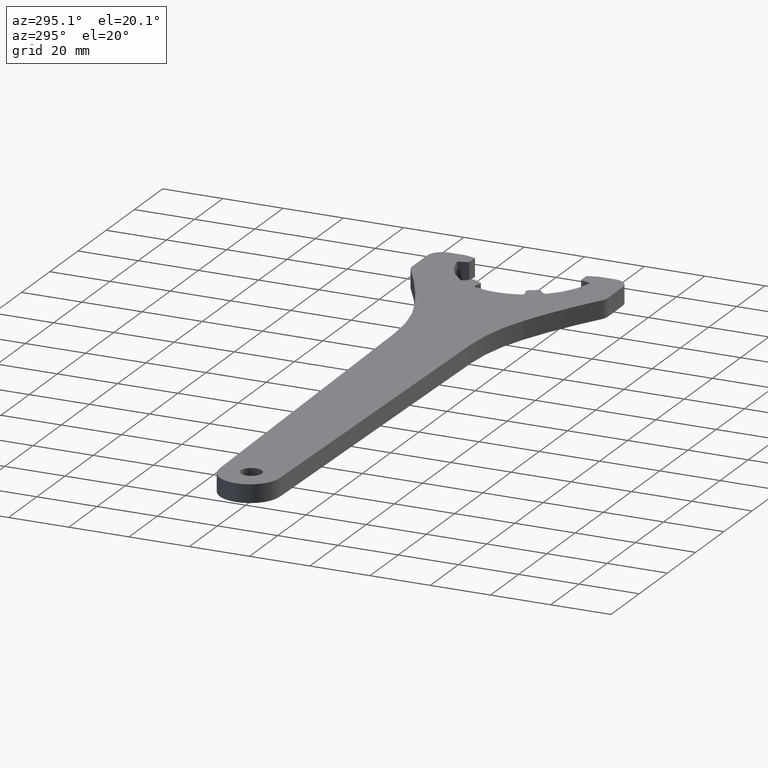
[diagram: clean part render]
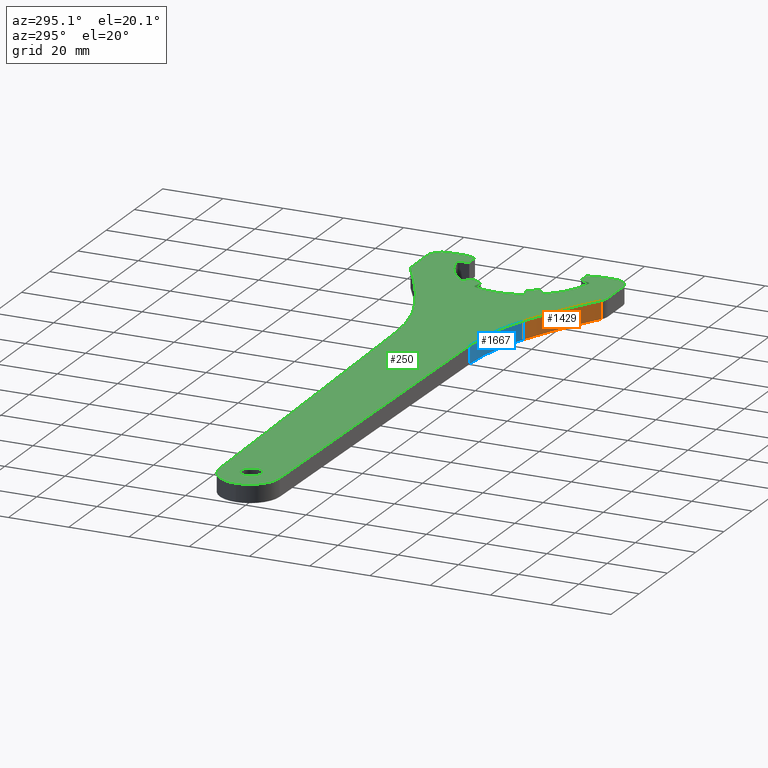
[diagram: same view with three faces highlighted in distinct colors, each labeled with its STEP entity id]
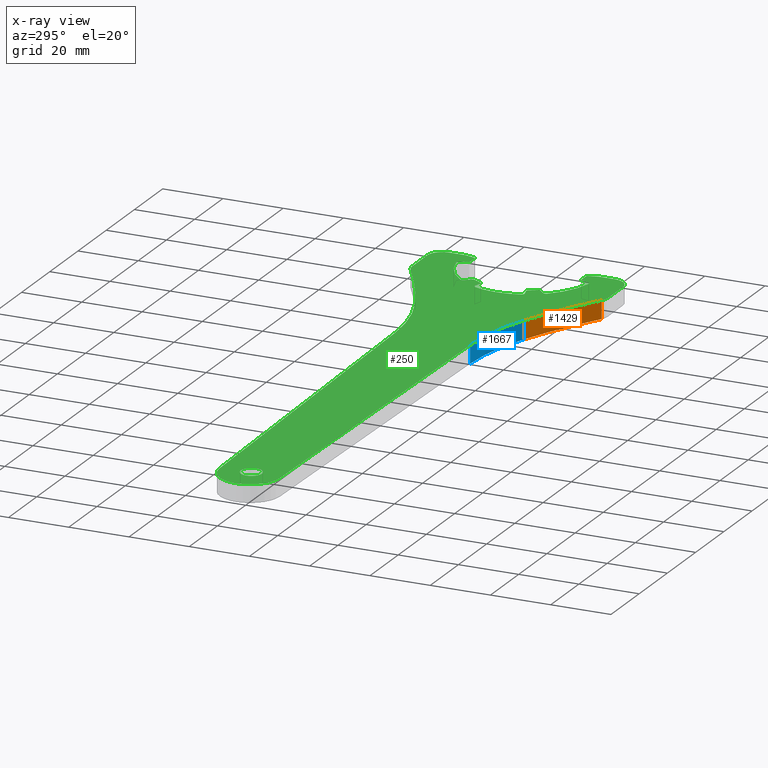
[diagram: x-ray of the same camera — body ghosted, the three highlighted faces saturated]
A machine part, auxiliary view with three faces highlighted in distinct colors.
The next image is the same camera in x-ray (body ghosted, the three faces saturated) — at least one of them is partly hidden behind the body in this view.
Their STEP definitions:

[orange] entity #1429 — the highlighted cylindrical surface (partial cylindrical patch) has radius 181.238 mm, axis along (0, 0, -1).
#48 = CARTESIAN_POINT ( 'NONE',  ( -15.41850356263618400, -31.72609176872342800, 0.0000000000000000000 ) ) ;
#92 = DIRECTION ( 'NONE',  ( 0.0000000000000000000, 0.0000000000000000000, -1.000000000000000000 ) ) ;
#197 = CARTESIAN_POINT ( 'NONE',  ( -41.59610270092473200, -18.02386688492609700, 6.000000000000000000 ) ) ;
#232 = ORIENTED_EDGE ( 'NONE', *, *, #861, .T. ) ;
#242 = DIRECTION ( 'NONE',  ( 0.0000000000000000000, 0.0000000000000000000, -1.000000000000000000 ) ) ;
#318 = ORIENTED_EDGE ( 'NONE', *, *, #988, .T. ) ;
#359 = ORIENTED_EDGE ( 'NONE', *, *, #1051, .T. ) ;
#551 = CARTESIAN_POINT ( 'NONE',  ( -41.59610267402430100, -18.02386689675500300, 3.000000000000000000 ) ) ;
#557 = CARTESIAN_POINT ( 'NONE',  ( -112.2756825459999800, -184.9114022759999900, 0.0000000000000000000 ) ) ;
#692 = DIRECTION ( 'NONE',  ( -1.000000000000000000, 0.0000000000000000000, 0.0000000000000000000 ) ) ;
#775 = CARTESIAN_POINT ( 'NONE',  ( -15.41850356262761900, -31.72609176870988500, 6.000000000000000000 ) ) ;
#788 = VERTEX_POINT ( 'NONE', #954 ) ;
#820 = CYLINDRICAL_SURFACE ( 'NONE', #1204, 181.2375581270000600 ) ;
#861 = EDGE_CURVE ( 'NONE', #1024, #788, #1246, .T. ) ;
#863 = DIRECTION ( 'NONE',  ( -0.0000000000000000000, -0.0000000000000000000, 1.000000000000000000 ) ) ;
#872 = AXIS2_PLACEMENT_3D ( 'NONE', #1049, #242, #1180 ) ;
#930 = VECTOR ( 'NONE', #1496, 1000.000000000000000 ) ;
#947 = VERTEX_POINT ( 'NONE', #775 ) ;
#952 = EDGE_CURVE ( 'NONE', #1024, #947, #1083, .T. ) ;
#954 = CARTESIAN_POINT ( 'NONE',  ( -41.59610270108135700, -18.02386688529592000, 0.0000000000000000000 ) ) ;
#958 = VERTEX_POINT ( 'NONE', #48 ) ;
#988 = EDGE_CURVE ( 'NONE', #958, #947, #1034, .T. ) ;
#994 = CARTESIAN_POINT ( 'NONE',  ( -15.41850356223255500, -31.72609176897863400, 3.000000000000000000 ) ) ;
#1024 = VERTEX_POINT ( 'NONE', #197 ) ;
#1034 = LINE ( 'NONE', #994, #1708 ) ;
#1049 = CARTESIAN_POINT ( 'NONE',  ( -112.2756825459999800, -184.9114022759999900, 6.000000000000000000 ) ) ;
#1051 = EDGE_CURVE ( 'NONE', #788, #958, #1631, .T. ) ;
#1083 = CIRCLE ( 'NONE', #872, 181.2375581270000600 ) ;
#1128 = ORIENTED_EDGE ( 'NONE', *, *, #952, .F. ) ;
#1180 = DIRECTION ( 'NONE',  ( -1.000000000000000000, 0.0000000000000000000, 0.0000000000000000000 ) ) ;
#1204 = AXIS2_PLACEMENT_3D ( 'NONE', #1707, #92, #1284 ) ;
#1246 = LINE ( 'NONE', #551, #930 ) ;
#1284 = DIRECTION ( 'NONE',  ( -1.000000000000000000, 0.0000000000000000000, 0.0000000000000000000 ) ) ;
#1313 = AXIS2_PLACEMENT_3D ( 'NONE', #557, #1500, #692 ) ;
#1429 = ADVANCED_FACE ( 'NONE', ( #1574 ), #820, .F. ) ;
#1496 = DIRECTION ( 'NONE',  ( 0.0000000000000000000, 0.0000000000000000000, -1.000000000000000000 ) ) ;
#1500 = DIRECTION ( 'NONE',  ( 0.0000000000000000000, 0.0000000000000000000, -1.000000000000000000 ) ) ;
#1574 = FACE_OUTER_BOUND ( 'NONE', #1675, .T. ) ;
#1631 = CIRCLE ( 'NONE', #1313, 181.2375581270000600 ) ;
#1675 = EDGE_LOOP ( 'NONE', ( #1128, #232, #359, #318 ) ) ;
#1707 = CARTESIAN_POINT ( 'NONE',  ( -112.2756825459999800, -184.9114022759999900, 6.000000000000000000 ) ) ;
#1708 = VECTOR ( 'NONE', #863, 1000.000000000000000 ) ;

[blue] entity #1667 — the highlighted cylindrical surface (partial cylindrical patch) has radius 70.1107 mm, axis along (0, 0, -1).
#6 = ORIENTED_EDGE ( 'NONE', *, *, #861, .F. ) ;
#59 = AXIS2_PLACEMENT_3D ( 'NONE', #1194, #394, #1323 ) ;
#99 = CARTESIAN_POINT ( 'NONE',  ( -67.59248863366760000, -12.48555840003721900, 6.000000000000000000 ) ) ;
#130 = EDGE_CURVE ( 'NONE', #960, #553, #1605, .T. ) ;
#139 = CARTESIAN_POINT ( 'NONE',  ( -67.59248863315484400, -12.48555838861780600, 0.0000000000000000000 ) ) ;
#156 = CARTESIAN_POINT ( 'NONE',  ( -68.93808457000000100, -82.58333333299998500, 0.0000000000000000000 ) ) ;
#167 = DIRECTION ( 'NONE',  ( 0.0000000000000000000, 0.0000000000000000000, -1.000000000000000000 ) ) ;
#197 = CARTESIAN_POINT ( 'NONE',  ( -41.59610270092473200, -18.02386688492609700, 6.000000000000000000 ) ) ;
#283 = DIRECTION ( 'NONE',  ( -1.000000000000000000, 0.0000000000000000000, 0.0000000000000000000 ) ) ;
#376 = EDGE_LOOP ( 'NONE', ( #1005, #1247, #702, #6 ) ) ;
#394 = DIRECTION ( 'NONE',  ( 0.0000000000000000000, 0.0000000000000000000, -1.000000000000000000 ) ) ;
#551 = CARTESIAN_POINT ( 'NONE',  ( -41.59610267402430100, -18.02386689675500300, 3.000000000000000000 ) ) ;
#553 = VERTEX_POINT ( 'NONE', #139 ) ;
#639 = DIRECTION ( 'NONE',  ( 0.0000000000000000000, 0.0000000000000000000, -1.000000000000000000 ) ) ;
#702 = ORIENTED_EDGE ( 'NONE', *, *, #1043, .T. ) ;
#733 = CYLINDRICAL_SURFACE ( 'NONE', #1632, 70.11068877599998900 ) ;
#788 = VERTEX_POINT ( 'NONE', #954 ) ;
#839 = CARTESIAN_POINT ( 'NONE',  ( -67.59248862842976300, -12.48555838823328700, 3.000000000000000000 ) ) ;
#861 = EDGE_CURVE ( 'NONE', #1024, #788, #1246, .T. ) ;
#881 = VECTOR ( 'NONE', #167, 1000.000000000000000 ) ;
#930 = VECTOR ( 'NONE', #1496, 1000.000000000000000 ) ;
#954 = CARTESIAN_POINT ( 'NONE',  ( -41.59610270108135700, -18.02386688529592000, 0.0000000000000000000 ) ) ;
#960 = VERTEX_POINT ( 'NONE', #99 ) ;
#1005 = ORIENTED_EDGE ( 'NONE', *, *, #1687, .F. ) ;
#1024 = VERTEX_POINT ( 'NONE', #197 ) ;
#1043 = EDGE_CURVE ( 'NONE', #553, #788, #1673, .T. ) ;
#1097 = DIRECTION ( 'NONE',  ( 0.0000000000000000000, 0.0000000000000000000, -1.000000000000000000 ) ) ;
#1194 = CARTESIAN_POINT ( 'NONE',  ( -68.93808457000000100, -82.58333333299998500, 6.000000000000000000 ) ) ;
#1246 = LINE ( 'NONE', #551, #930 ) ;
#1247 = ORIENTED_EDGE ( 'NONE', *, *, #130, .T. ) ;
#1323 = DIRECTION ( 'NONE',  ( -1.000000000000000000, 0.0000000000000000000, 0.0000000000000000000 ) ) ;
#1449 = CARTESIAN_POINT ( 'NONE',  ( -68.93808457000000100, -82.58333333299998500, 6.000000000000000000 ) ) ;
#1458 = CIRCLE ( 'NONE', #59, 70.11068877599998900 ) ;
#1496 = DIRECTION ( 'NONE',  ( 0.0000000000000000000, 0.0000000000000000000, -1.000000000000000000 ) ) ;
#1506 = FACE_OUTER_BOUND ( 'NONE', #376, .T. ) ;
#1508 = AXIS2_PLACEMENT_3D ( 'NONE', #156, #1097, #283 ) ;
#1587 = DIRECTION ( 'NONE',  ( -1.000000000000000000, 0.0000000000000000000, 0.0000000000000000000 ) ) ;
#1605 = LINE ( 'NONE', #839, #881 ) ;
#1632 = AXIS2_PLACEMENT_3D ( 'NONE', #1449, #639, #1587 ) ;
#1667 = ADVANCED_FACE ( 'NONE', ( #1506 ), #733, .F. ) ;
#1673 = CIRCLE ( 'NONE', #1508, 70.11068877599998900 ) ;
#1687 = EDGE_CURVE ( 'NONE', #960, #1024, #1458, .T. ) ;

[green] entity #250 — the highlighted planar face has unit normal (0, 0, 1).
#2 = DIRECTION ( 'NONE',  ( -1.000000000000000000, -6.938893903907222100E-015, 0.0000000000000000000 ) ) ;
#8 = CARTESIAN_POINT ( 'NONE',  ( -12.74639795799999900, 27.50000000000000000, 6.000000000000000000 ) ) ;
#17 = CARTESIAN_POINT ( 'NONE',  ( -16.30409609500000200, 13.74719176499999700, 6.000000000000000000 ) ) ;
#18 = DIRECTION ( 'NONE',  ( 1.000000000000000000, 0.0000000000000000000, 0.0000000000000000000 ) ) ;
#19 = EDGE_CURVE ( 'NONE', #1386, #286, #650, .T. ) ;
#28 = DIRECTION ( 'NONE',  ( -0.0000000000000000000, -0.0000000000000000000, 1.000000000000000000 ) ) ;
#35 = ORIENTED_EDGE ( 'NONE', *, *, #380, .T. ) ;
#40 = CARTESIAN_POINT ( 'NONE',  ( -15.62131441899999900, -10.94308974500000000, 6.000000000000000000 ) ) ;
#42 = ORIENTED_EDGE ( 'NONE', *, *, #1629, .T. ) ;
#43 = CIRCLE ( 'NONE', #396, 1.000000000000000400 ) ;
#44 = DIRECTION ( 'NONE',  ( -1.000000000000000000, 0.0000000000000000000, 0.0000000000000000000 ) ) ;
#51 = ORIENTED_EDGE ( 'NONE', *, *, #892, .T. ) ;
#52 = LINE ( 'NONE', #644, #760 ) ;
#55 = LINE ( 'NONE', #1651, #1393 ) ;
#58 = EDGE_CURVE ( 'NONE', #666, #697, #1013, .T. ) ;
#59 = AXIS2_PLACEMENT_3D ( 'NONE', #1194, #394, #1323 ) ;
#60 = AXIS2_PLACEMENT_3D ( 'NONE', #417, #1340, #548 ) ;
#65 = CIRCLE ( 'NONE', #1347, 10.00000000000000900 ) ;
#71 = VERTEX_POINT ( 'NONE', #1717 ) ;
#85 = ORIENTED_EDGE ( 'NONE', *, *, #1684, .T. ) ;
#91 = CIRCLE ( 'NONE', #821, 22.32624746300000500 ) ;
#96 = DIRECTION ( 'NONE',  ( 0.2588191014997078800, -0.9659258111774857700, 0.0000000000000000000 ) ) ;
#97 = ORIENTED_EDGE ( 'NONE', *, *, #1062, .F. ) ;
#98 = DIRECTION ( 'NONE',  ( -0.0000000000000000000, -0.0000000000000000000, 1.000000000000000000 ) ) ;
#99 = CARTESIAN_POINT ( 'NONE',  ( -67.59248863366760000, -12.48555840003721900, 6.000000000000000000 ) ) ;
#104 = ORIENTED_EDGE ( 'NONE', *, *, #636, .T. ) ;
#105 = CIRCLE ( 'NONE', #1172, 1.000000000000000900 ) ;
#106 = VECTOR ( 'NONE', #96, 1000.000000000000000 ) ;
#109 = EDGE_CURVE ( 'NONE', #315, #116, #1653, .T. ) ;
#115 = CARTESIAN_POINT ( 'NONE',  ( -17.01120287352164000, 13.04008500470509100, 6.000000000000000000 ) ) ;
#116 = VERTEX_POINT ( 'NONE', #695 ) ;
#118 = VERTEX_POINT ( 'NONE', #1650 ) ;
#119 = DIRECTION ( 'NONE',  ( -1.000000000000000000, -1.776356839400250500E-015, 0.0000000000000000000 ) ) ;
#124 = DIRECTION ( 'NONE',  ( -0.0000000000000000000, -0.0000000000000000000, 1.000000000000000000 ) ) ;
#129 = DIRECTION ( 'NONE',  ( -1.000000000000000000, -8.881784197001252300E-016, 0.0000000000000000000 ) ) ;
#147 = DIRECTION ( 'NONE',  ( -1.000000000000000000, 3.469446951953615000E-015, 0.0000000000000000000 ) ) ;
#150 = CARTESIAN_POINT ( 'NONE',  ( 2.050000031239979300, 18.50000002499999900, 6.000000000000000000 ) ) ;
#153 = AXIS2_PLACEMENT_3D ( 'NONE', #658, #1608, #797 ) ;
#159 = VERTEX_POINT ( 'NONE', #1028 ) ;
#163 = DIRECTION ( 'NONE',  ( -1.000000000000000000, 0.0000000000000000000, 0.0000000000000000000 ) ) ;
#165 = CARTESIAN_POINT ( 'NONE',  ( 1.666336506000000200, -18.50000001249999600, 6.000000000000000000 ) ) ;
#168 = VERTEX_POINT ( 'NONE', #217 ) ;
#169 = CARTESIAN_POINT ( 'NONE',  ( -102.6097512369999700, -32.50000000000000000, 6.000000000000000000 ) ) ;
#173 = CARTESIAN_POINT ( 'NONE',  ( 0.0000000000000000000, 0.0000000000000000000, 6.000000000000000000 ) ) ;
#179 = DIRECTION ( 'NONE',  ( -1.000000000000000000, 0.0000000000000000000, 0.0000000000000000000 ) ) ;
#181 = CIRCLE ( 'NONE', #478, 22.32624746300000500 ) ;
#182 = EDGE_CURVE ( 'NONE', #286, #834, #1198, .T. ) ;
#187 = AXIS2_PLACEMENT_3D ( 'NONE', #1740, #937, #129 ) ;
#197 = CARTESIAN_POINT ( 'NONE',  ( -41.59610270092473200, -18.02386688492609700, 6.000000000000000000 ) ) ;
#208 = ORIENTED_EDGE ( 'NONE', *, *, #1155, .T. ) ;
#216 = CIRCLE ( 'NONE', #384, 0.5000000000000073300 ) ;
#217 = CARTESIAN_POINT ( 'NONE',  ( -17.41706045098349900, 7.573947336902477900, 6.000000000000000000 ) ) ;
#227 = CARTESIAN_POINT ( 'NONE',  ( -16.85463823866665200, 7.806910264197613400, 6.000000000000000000 ) ) ;
#238 = VECTOR ( 'NONE', #341, 1000.000000000000200 ) ;
#242 = DIRECTION ( 'NONE',  ( 0.0000000000000000000, 0.0000000000000000000, -1.000000000000000000 ) ) ;
#243 = CARTESIAN_POINT ( 'NONE',  ( -19.79864627649996600, 8.212091355000005400, 6.000000000000000000 ) ) ;
#245 = CARTESIAN_POINT ( 'NONE',  ( -16.30409609500000200, 13.74719176499999700, 6.000000000000000000 ) ) ;
#250 = ADVANCED_FACE ( 'NONE', ( #753, #803 ), #1071, .T. ) ;
#255 = EDGE_CURVE ( 'NONE', #315, #1291, #43, .T. ) ;
#263 = CARTESIAN_POINT ( 'NONE',  ( -199.4797512373251600, 4.286263797015716400E-016, 6.000000000000000000 ) ) ;
#269 = VERTEX_POINT ( 'NONE', #361 ) ;
#273 = DIRECTION ( 'NONE',  ( -0.0000000000000000000, -0.0000000000000000000, 1.000000000000000000 ) ) ;
#281 = DIRECTION ( 'NONE',  ( 0.2588190386275460200, 0.9659258280240324800, 0.0000000000000000000 ) ) ;
#282 = VERTEX_POINT ( 'NONE', #227 ) ;
#284 = CIRCLE ( 'NONE', #1658, 181.2375581270000600 ) ;
#285 = DIRECTION ( 'NONE',  ( 0.0000000000000000000, 0.0000000000000000000, 1.000000000000000000 ) ) ;
#286 = VERTEX_POINT ( 'NONE', #1167 ) ;
#296 = VECTOR ( 'NONE', #488, 1000.000000000000000 ) ;
#298 = LINE ( 'NONE', #808, #980 ) ;
#304 = DIRECTION ( 'NONE',  ( -1.000000000000000000, 0.0000000000000000000, 0.0000000000000000000 ) ) ;
#310 = VERTEX_POINT ( 'NONE', #544 ) ;
#311 = EDGE_CURVE ( 'NONE', #71, #1533, #1238, .T. ) ;
#312 = CARTESIAN_POINT ( 'NONE',  ( -15.18830173377897100, -10.69308975483981200, 6.000000000000000000 ) ) ;
#313 = EDGE_CURVE ( 'NONE', #549, #1069, #518, .T. ) ;
#315 = VERTEX_POINT ( 'NONE', #1488 ) ;
#320 = ORIENTED_EDGE ( 'NONE', *, *, #1478, .T. ) ;
#325 = ORIENTED_EDGE ( 'NONE', *, *, #1197, .T. ) ;
#330 = VERTEX_POINT ( 'NONE', #1495 ) ;
#333 = VERTEX_POINT ( 'NONE', #426 ) ;
#341 = DIRECTION ( 'NONE',  ( 0.4999999994492528900, 0.8660254041024126900, 0.0000000000000000000 ) ) ;
#346 = ORIENTED_EDGE ( 'NONE', *, *, #1160, .F. ) ;
#348 = ORIENTED_EDGE ( 'NONE', *, *, #311, .T. ) ;
#351 = VERTEX_POINT ( 'NONE', #969 ) ;
#361 = CARTESIAN_POINT ( 'NONE',  ( -17.30409609500000200, 13.74719176499999700, 6.000000000000000000 ) ) ;
#372 = CARTESIAN_POINT ( 'NONE',  ( 3.020248762999999700, -22.12101768499999800, 6.000000000000000000 ) ) ;
#374 = CARTESIAN_POINT ( 'NONE',  ( -19.79864629451137100, 8.212091353043764000, 6.000000000000000000 ) ) ;
#375 = DIRECTION ( 'NONE',  ( -1.000000000000000000, 0.0000000000000000000, 0.0000000000000000000 ) ) ;
#380 = EDGE_CURVE ( 'NONE', #1228, #665, #1513, .T. ) ;
#381 = CIRCLE ( 'NONE', #153, 1.000000000000000900 ) ;
#384 = AXIS2_PLACEMENT_3D ( 'NONE', #844, #28, #977 ) ;
#387 = CARTESIAN_POINT ( 'NONE',  ( -1.979751236999999700, 27.50000000000000000, 6.000000000000000000 ) ) ;
#392 = CIRCLE ( 'NONE', #1382, 0.5000000000000004400 ) ;
#394 = DIRECTION ( 'NONE',  ( 0.0000000000000000000, 0.0000000000000000000, -1.000000000000000000 ) ) ;
#396 = AXIS2_PLACEMENT_3D ( 'NONE', #501, #1432, #629 ) ;
#402 = ORIENTED_EDGE ( 'NONE', *, *, #613, .T. ) ;
#405 = CARTESIAN_POINT ( 'NONE',  ( -1.979751236038273200, -32.50000000000000000, 6.000000000000000000 ) ) ;
#409 = DIRECTION ( 'NONE',  ( 0.7071067631138636700, 0.7071067992592310300, 0.0000000000000000000 ) ) ;
#410 = DIRECTION ( 'NONE',  ( -1.000000000000000000, 2.081668171172168100E-015, 0.0000000000000000000 ) ) ;
#417 = CARTESIAN_POINT ( 'NONE',  ( -20.05746534600000800, 7.246165521000000000, 6.000000000000000000 ) ) ;
#418 = CARTESIAN_POINT ( 'NONE',  ( -19.79864629451137100, -8.212091353043760500, 6.000000000000000000 ) ) ;
#420 = CIRCLE ( 'NONE', #1001, 5.000000000000000900 ) ;
#421 = CIRCLE ( 'NONE', #1482, 1.000000000000000900 ) ;
#422 = DIRECTION ( 'NONE',  ( 0.0000000000000000000, 0.0000000000000000000, -1.000000000000000000 ) ) ;
#423 = CARTESIAN_POINT ( 'NONE',  ( 3.020248762999999700, 0.0000000000000000000, 6.000000000000000000 ) ) ;
#424 = CARTESIAN_POINT ( 'NONE',  ( 3.020248763000000100, 22.12101768250000000, 6.000000000000000000 ) ) ;
#426 = CARTESIAN_POINT ( 'NONE',  ( 2.149299413061730200, -18.87059047801895100, 6.000000000000000000 ) ) ;
#432 = CIRCLE ( 'NONE', #1349, 5.000000000000000900 ) ;
#433 = CARTESIAN_POINT ( 'NONE',  ( 0.0000000000000000000, 0.0000000000000000000, 6.000000000000000000 ) ) ;
#438 = CARTESIAN_POINT ( 'NONE',  ( -2.049999949330001000, 18.50000001874999700, 6.000000000000000000 ) ) ;
#446 = EDGE_CURVE ( 'NONE', #1745, #118, #1410, .T. ) ;
#448 = EDGE_CURVE ( 'NONE', #168, #282, #392, .T. ) ;
#450 = EDGE_CURVE ( 'NONE', #330, #471, #1463, .T. ) ;
#462 = AXIS2_PLACEMENT_3D ( 'NONE', #1484, #667, #1617 ) ;
#468 = ORIENTED_EDGE ( 'NONE', *, *, #706, .T. ) ;
#471 = VERTEX_POINT ( 'NONE', #655 ) ;
#478 = AXIS2_PLACEMENT_3D ( 'NONE', #173, #1118, #304 ) ;
#487 = AXIS2_PLACEMENT_3D ( 'NONE', #656, #533, #1475 ) ;
#488 = DIRECTION ( 'NONE',  ( -0.4999999994492533900, 0.8660254041024123600, 0.0000000000000000000 ) ) ;
#490 = LINE ( 'NONE', #759, #1159 ) ;
#491 = VERTEX_POINT ( 'NONE', #1469 ) ;
#493 = ORIENTED_EDGE ( 'NONE', *, *, #1687, .T. ) ;
#495 = DIRECTION ( 'NONE',  ( 0.0000000000000000000, 1.000000000000000000, 0.0000000000000000000 ) ) ;
#497 = VECTOR ( 'NONE', #982, 1000.000000000000000 ) ;
#498 = EDGE_CURVE ( 'NONE', #1388, #592, #703, .T. ) ;
#501 = CARTESIAN_POINT ( 'NONE',  ( -3.753369252000000600, -20.99335728599999800, 6.000000000000000000 ) ) ;
#513 = EDGE_LOOP ( 'NONE', ( #348, #1417, #911, #320, #959, #1004, #325, #493, #811, #85, #1485, #758, #51, #1430, #1085, #1374, #35, #42, #628, #671, #1439, #1622, #1142, #1652, #924, #601, #568, #1603, #522, #208, #1078, #402, #1222, #865, #1260, #468, #1175, #97, #589, #1541, #1586, #554, #868, #1546, #104, #1636 ) ) ;
#515 = VECTOR ( 'NONE', #901, 1000.000000000000000 ) ;
#518 = CIRCLE ( 'NONE', #751, 70.11068877599998900 ) ;
#521 = DIRECTION ( 'NONE',  ( -0.0000000000000000000, -0.0000000000000000000, 1.000000000000000000 ) ) ;
#522 = ORIENTED_EDGE ( 'NONE', *, *, #622, .T. ) ;
#529 = VECTOR ( 'NONE', #686, 1000.000000000000100 ) ;
#530 = EDGE_CURVE ( 'NONE', #333, #1266, #659, .T. ) ;
#533 = DIRECTION ( 'NONE',  ( 0.0000000000000000000, 0.0000000000000000000, 1.000000000000000000 ) ) ;
#537 = CIRCLE ( 'NONE', #566, 3.500000000000003100 ) ;
#538 = CARTESIAN_POINT ( 'NONE',  ( -17.41706045098349900, -7.573947336902476100, 6.000000000000000000 ) ) ;
#544 = CARTESIAN_POINT ( 'NONE',  ( -20.99797142402372400, 7.585942384473338700, 6.000000000000000000 ) ) ;
#548 = DIRECTION ( 'NONE',  ( -1.000000000000000000, -5.204170427930434700E-015, 0.0000000000000000000 ) ) ;
#549 = VERTEX_POINT ( 'NONE', #1749 ) ;
#554 = ORIENTED_EDGE ( 'NONE', *, *, #1304, .T. ) ;
#559 = VERTEX_POINT ( 'NONE', #946 ) ;
#560 = DIRECTION ( 'NONE',  ( -1.000000000000000000, 0.0000000000000000000, 0.0000000000000000000 ) ) ;
#564 = EDGE_CURVE ( 'NONE', #1058, #333, #941, .T. ) ;
#566 = AXIS2_PLACEMENT_3D ( 'NONE', #1375, #575, #1523 ) ;
#568 = ORIENTED_EDGE ( 'NONE', *, *, #869, .T. ) ;
#575 = DIRECTION ( 'NONE',  ( 0.0000000000000000000, 0.0000000000000000000, 1.000000000000000000 ) ) ;
#589 = ORIENTED_EDGE ( 'NONE', *, *, #498, .F. ) ;
#590 = DIRECTION ( 'NONE',  ( 0.0000000000000000000, 0.0000000000000000000, -1.000000000000000000 ) ) ;
#592 = VERTEX_POINT ( 'NONE', #637 ) ;
#601 = ORIENTED_EDGE ( 'NONE', *, *, #182, .T. ) ;
#605 = VECTOR ( 'NONE', #495, 1000.000000000000000 ) ;
#609 = EDGE_CURVE ( 'NONE', #159, #71, #857, .T. ) ;
#612 = VERTEX_POINT ( 'NONE', #1592 ) ;
#613 = EDGE_CURVE ( 'NONE', #975, #168, #1491, .T. ) ;
#620 = CARTESIAN_POINT ( 'NONE',  ( -17.28765092500000100, -8.056910255000001800, 6.000000000000000000 ) ) ;
#622 = EDGE_CURVE ( 'NONE', #666, #491, #91, .T. ) ;
#626 = AXIS2_PLACEMENT_3D ( 'NONE', #1098, #285, #1232 ) ;
#628 = ORIENTED_EDGE ( 'NONE', *, *, #255, .F. ) ;
#629 = DIRECTION ( 'NONE',  ( -1.000000000000000000, 0.0000000000000000000, 0.0000000000000000000 ) ) ;
#633 = VERTEX_POINT ( 'NONE', #115 ) ;
#636 = EDGE_CURVE ( 'NONE', #1344, #159, #420, .T. ) ;
#637 = CARTESIAN_POINT ( 'NONE',  ( -17.06860453101466700, 14.39180548752101900, 6.000000000000000000 ) ) ;
#644 = CARTESIAN_POINT ( 'NONE',  ( -67.59248873481996600, 12.48555841000001400, 6.000000000000000000 ) ) ;
#646 = DIRECTION ( 'NONE',  ( 0.0000000000000000000, 0.0000000000000000000, -1.000000000000000000 ) ) ;
#649 = AXIS2_PLACEMENT_3D ( 'NONE', #40, #990, #179 ) ;
#650 = LINE ( 'NONE', #1419, #296 ) ;
#655 = CARTESIAN_POINT ( 'NONE',  ( -197.1716757432827500, -9.998158091966482500, 6.000000000000000000 ) ) ;
#656 = CARTESIAN_POINT ( 'NONE',  ( -208.2397512369999500, -32.50000000000000000, 6.000000000000000000 ) ) ;
#658 = CARTESIAN_POINT ( 'NONE',  ( -16.30409609500000200, -13.74719176499999700, 6.000000000000000000 ) ) ;
#659 = CIRCLE ( 'NONE', #462, 0.5000000000000000000 ) ;
#660 = AXIS2_PLACEMENT_3D ( 'NONE', #8, #953, #147 ) ;
#665 = VERTEX_POINT ( 'NONE', #1487 ) ;
#666 = VERTEX_POINT ( 'NONE', #669 ) ;
#667 = DIRECTION ( 'NONE',  ( -0.0000000000000000000, -0.0000000000000000000, 1.000000000000000000 ) ) ;
#669 = CARTESIAN_POINT ( 'NONE',  ( -20.99797142334255200, -7.585942386358816200, 6.000000000000000000 ) ) ;
#671 = ORIENTED_EDGE ( 'NONE', *, *, #109, .T. ) ;
#686 = DIRECTION ( 'NONE',  ( -0.9659258237937440300, -0.2588190544151975400, 0.0000000000000000000 ) ) ;
#695 = CARTESIAN_POINT ( 'NONE',  ( -17.06860452913060300, -14.39180548892690200, 6.000000000000000000 ) ) ;
#697 = VERTEX_POINT ( 'NONE', #418 ) ;
#703 = CIRCLE ( 'NONE', #187, 22.32624746300000500 ) ;
#706 = EDGE_CURVE ( 'NONE', #907, #633, #1720, .T. ) ;
#707 = EDGE_CURVE ( 'NONE', #1011, #731, #1082, .T. ) ;
#712 = CARTESIAN_POINT ( 'NONE',  ( 3.020248762999999700, -27.50000000000000000, 6.000000000000000000 ) ) ;
#731 = VERTEX_POINT ( 'NONE', #424 ) ;
#736 = EDGE_CURVE ( 'NONE', #1681, #1584, #785, .T. ) ;
#739 = EDGE_CURVE ( 'NONE', #1517, #116, #105, .T. ) ;
#748 = VERTEX_POINT ( 'NONE', #405 ) ;
#751 = AXIS2_PLACEMENT_3D ( 'NONE', #1221, #422, #1348 ) ;
#753 = FACE_BOUND ( 'NONE', #984, .T. ) ;
#757 = DIRECTION ( 'NONE',  ( -1.000000000000000000, 1.040834085586083300E-014, 0.0000000000000000000 ) ) ;
#758 = ORIENTED_EDGE ( 'NONE', *, *, #761, .T. ) ;
#759 = CARTESIAN_POINT ( 'NONE',  ( 3.020248762999999700, 0.0000000000000000000, 6.000000000000000000 ) ) ;
#760 = VECTOR ( 'NONE', #1454, 1000.000000000000000 ) ;
#761 = EDGE_CURVE ( 'NONE', #748, #1209, #432, .T. ) ;
#775 = CARTESIAN_POINT ( 'NONE',  ( -15.41850356262761900, -31.72609176870988500, 6.000000000000000000 ) ) ;
#785 = CIRCLE ( 'NONE', #626, 3.500000000000003100 ) ;
#793 = ORIENTED_EDGE ( 'NONE', *, *, #736, .F. ) ;
#797 = DIRECTION ( 'NONE',  ( -1.000000000000000000, -1.387778780781444400E-014, 0.0000000000000000000 ) ) ;
#801 = CARTESIAN_POINT ( 'NONE',  ( -16.30409609500000200, -13.74719176499999700, 6.000000000000000000 ) ) ;
#803 = FACE_OUTER_BOUND ( 'NONE', #513, .T. ) ;
#808 = CARTESIAN_POINT ( 'NONE',  ( -102.6097512369999500, -18.50000002499999900, 6.000000000000000000 ) ) ;
#811 = ORIENTED_EDGE ( 'NONE', *, *, #952, .T. ) ;
#813 = DIRECTION ( 'NONE',  ( -0.0000000000000000000, -0.0000000000000000000, 1.000000000000000000 ) ) ;
#814 = DIRECTION ( 'NONE',  ( -0.0000000000000000000, -0.0000000000000000000, 1.000000000000000000 ) ) ;
#817 = EDGE_CURVE ( 'NONE', #975, #310, #1320, .T. ) ;
#821 = AXIS2_PLACEMENT_3D ( 'NONE', #1459, #646, #1600 ) ;
#823 = DIRECTION ( 'NONE',  ( -0.7071067631138636700, 0.7071067992592310300, 0.0000000000000000000 ) ) ;
#834 = VERTEX_POINT ( 'NONE', #538 ) ;
#844 = CARTESIAN_POINT ( 'NONE',  ( -15.62131441899999900, 10.94308974500000000, 6.000000000000000000 ) ) ;
#854 = DIRECTION ( 'NONE',  ( 0.0000000000000000000, 0.0000000000000000000, -1.000000000000000000 ) ) ;
#856 = CIRCLE ( 'NONE', #649, 0.5000000000000073300 ) ;
#857 = LINE ( 'NONE', #1050, #1166 ) ;
#858 = CARTESIAN_POINT ( 'NONE',  ( -1.666336506000000200, -18.50000001249999600, 6.000000000000000000 ) ) ;
#865 = ORIENTED_EDGE ( 'NONE', *, *, #1595, .T. ) ;
#868 = ORIENTED_EDGE ( 'NONE', *, *, #707, .T. ) ;
#869 = EDGE_CURVE ( 'NONE', #834, #697, #1014, .T. ) ;
#872 = AXIS2_PLACEMENT_3D ( 'NONE', #1049, #242, #1180 ) ;
#880 = CARTESIAN_POINT ( 'NONE',  ( -192.4797512373251600, 0.0000000000000000000, 6.000000000000000000 ) ) ;
#886 = EDGE_CURVE ( 'NONE', #731, #1344, #1199, .T. ) ;
#892 = EDGE_CURVE ( 'NONE', #1209, #1058, #490, .T. ) ;
#900 = DIRECTION ( 'NONE',  ( 0.0000000000000000000, 1.000000000000000000, 0.0000000000000000000 ) ) ;
#901 = DIRECTION ( 'NONE',  ( -0.2588190443328669500, -0.9659258264952964600, 0.0000000000000000000 ) ) ;
#907 = VERTEX_POINT ( 'NONE', #1033 ) ;
#910 = CARTESIAN_POINT ( 'NONE',  ( -20.05746534600000800, -7.246165521000000000, 6.000000000000000000 ) ) ;
#911 = ORIENTED_EDGE ( 'NONE', *, *, #313, .T. ) ;
#924 = ORIENTED_EDGE ( 'NONE', *, *, #19, .T. ) ;
#928 = DIRECTION ( 'NONE',  ( -0.0000000000000000000, -0.0000000000000000000, 1.000000000000000000 ) ) ;
#932 = CARTESIAN_POINT ( 'NONE',  ( -1.666336506000000200, -19.00000000000000000, 6.000000000000000000 ) ) ;
#937 = DIRECTION ( 'NONE',  ( -0.0000000000000000000, -0.0000000000000000000, 1.000000000000000000 ) ) ;
#939 = DIRECTION ( 'NONE',  ( -1.000000000000000000, 0.0000000000000000000, 0.0000000000000000000 ) ) ;
#941 = LINE ( 'NONE', #372, #1283 ) ;
#942 = CARTESIAN_POINT ( 'NONE',  ( -17.01120282526000300, -13.04008497999999100, 6.000000000000000000 ) ) ;
#943 = CARTESIAN_POINT ( 'NONE',  ( -17.01120287335134100, -13.04008500422133900, 6.000000000000000000 ) ) ;
#946 = CARTESIAN_POINT ( 'NONE',  ( -197.1716757419955300, 9.998158091774351800, 6.000000000000000000 ) ) ;
#947 = VERTEX_POINT ( 'NONE', #775 ) ;
#952 = EDGE_CURVE ( 'NONE', #1024, #947, #1083, .T. ) ;
#953 = DIRECTION ( 'NONE',  ( -0.0000000000000000000, -0.0000000000000000000, 1.000000000000000000 ) ) ;
#956 = CIRCLE ( 'NONE', #1689, 1.000000000000000900 ) ;
#959 = ORIENTED_EDGE ( 'NONE', *, *, #1685, .T. ) ;
#960 = VERTEX_POINT ( 'NONE', #99 ) ;
#963 = CARTESIAN_POINT ( 'NONE',  ( -67.59248863845272100, 12.48555840042059400, 6.000000000000000000 ) ) ;
#969 = CARTESIAN_POINT ( 'NONE',  ( -2.787443463014287900, 21.25217635122190200, 6.000000000000000000 ) ) ;
#971 = DIRECTION ( 'NONE',  ( -0.0000000000000000000, -0.0000000000000000000, 1.000000000000000000 ) ) ;
#975 = VERTEX_POINT ( 'NONE', #374 ) ;
#977 = DIRECTION ( 'NONE',  ( -1.000000000000000000, -6.938893903907126600E-015, 0.0000000000000000000 ) ) ;
#980 = VECTOR ( 'NONE', #1611, 1000.000000000000000 ) ;
#982 = DIRECTION ( 'NONE',  ( 0.9998158079564410900, -0.01919245060978547500, 0.0000000000000000000 ) ) ;
#984 = EDGE_LOOP ( 'NONE', ( #346, #793 ) ) ;
#990 = DIRECTION ( 'NONE',  ( -0.0000000000000000000, -0.0000000000000000000, 1.000000000000000000 ) ) ;
#996 = EDGE_CURVE ( 'NONE', #1388, #351, #1126, .T. ) ;
#1001 = AXIS2_PLACEMENT_3D ( 'NONE', #387, #1208, #410 ) ;
#1004 = ORIENTED_EDGE ( 'NONE', *, *, #450, .T. ) ;
#1010 = VECTOR ( 'NONE', #823, 1000.000000000000000 ) ;
#1011 = VERTEX_POINT ( 'NONE', #1137 ) ;
#1013 = CIRCLE ( 'NONE', #1133, 0.9999999999999974500 ) ;
#1014 = LINE ( 'NONE', #1217, #529 ) ;
#1024 = VERTEX_POINT ( 'NONE', #197 ) ;
#1028 = CARTESIAN_POINT ( 'NONE',  ( -1.979751237000000800, 32.50000000000000000, 6.000000000000000000 ) ) ;
#1033 = CARTESIAN_POINT ( 'NONE',  ( -15.26776103407682500, 11.29664312088683400, 6.000000000000000000 ) ) ;
#1041 = LINE ( 'NONE', #1279, #238 ) ;
#1048 = DIRECTION ( 'NONE',  ( -1.000000000000000000, 0.0000000000000000000, 0.0000000000000000000 ) ) ;
#1049 = CARTESIAN_POINT ( 'NONE',  ( -112.2756825459999800, -184.9114022759999900, 6.000000000000000000 ) ) ;
#1050 = CARTESIAN_POINT ( 'NONE',  ( -102.6097512369999700, 32.50000000000000000, 6.000000000000000000 ) ) ;
#1054 = AXIS2_PLACEMENT_3D ( 'NONE', #1392, #590, #1543 ) ;
#1055 = DIRECTION ( 'NONE',  ( 0.9659258237937440300, -0.2588190544151975400, 0.0000000000000000000 ) ) ;
#1058 = VERTEX_POINT ( 'NONE', #1223 ) ;
#1062 = EDGE_CURVE ( 'NONE', #592, #269, #956, .T. ) ;
#1066 = VECTOR ( 'NONE', #409, 1000.000000000000000 ) ;
#1069 = VERTEX_POINT ( 'NONE', #963 ) ;
#1071 = PLANE ( 'NONE',  #487 ) ;
#1073 = DIRECTION ( 'NONE',  ( -1.000000000000000000, 6.938893903907222100E-015, 0.0000000000000000000 ) ) ;
#1078 = ORIENTED_EDGE ( 'NONE', *, *, #817, .F. ) ;
#1082 = LINE ( 'NONE', #150, #1351 ) ;
#1083 = CIRCLE ( 'NONE', #872, 181.2375581270000600 ) ;
#1085 = ORIENTED_EDGE ( 'NONE', *, *, #530, .T. ) ;
#1087 = CARTESIAN_POINT ( 'NONE',  ( -196.9797512369999600, 0.0000000000000000000, 6.000000000000000000 ) ) ;
#1098 = CARTESIAN_POINT ( 'NONE',  ( -195.9797512373251600, 0.0000000000000000000, 6.000000000000000000 ) ) ;
#1101 = CARTESIAN_POINT ( 'NONE',  ( -2.787443455027009500, -21.25217632268833900, 6.000000000000000000 ) ) ;
#1103 = CIRCLE ( 'NONE', #1442, 4.999999999999999100 ) ;
#1108 = EDGE_CURVE ( 'NONE', #1413, #907, #216, .T. ) ;
#1115 = VERTEX_POINT ( 'NONE', #438 ) ;
#1118 = DIRECTION ( 'NONE',  ( 0.0000000000000000000, 0.0000000000000000000, -1.000000000000000000 ) ) ;
#1126 = CIRCLE ( 'NONE', #1054, 1.000000000000000400 ) ;
#1133 = AXIS2_PLACEMENT_3D ( 'NONE', #910, #98, #1048 ) ;
#1134 = VECTOR ( 'NONE', #1055, 1000.000000000000100 ) ;
#1137 = CARTESIAN_POINT ( 'NONE',  ( 2.050000021344302600, 18.50000001096616800, 6.000000000000000000 ) ) ;
#1142 = ORIENTED_EDGE ( 'NONE', *, *, #446, .T. ) ;
#1147 = EDGE_CURVE ( 'NONE', #612, #748, #1612, .T. ) ;
#1155 = EDGE_CURVE ( 'NONE', #491, #310, #181, .T. ) ;
#1159 = VECTOR ( 'NONE', #900, 1000.000000000000000 ) ;
#1160 = EDGE_CURVE ( 'NONE', #1584, #1681, #537, .T. ) ;
#1166 = VECTOR ( 'NONE', #1307, 1000.000000000000000 ) ;
#1167 = CARTESIAN_POINT ( 'NONE',  ( -16.85463823866664900, -7.806910264197611600, 6.000000000000000000 ) ) ;
#1172 = AXIS2_PLACEMENT_3D ( 'NONE', #801, #1742, #939 ) ;
#1175 = ORIENTED_EDGE ( 'NONE', *, *, #1464, .F. ) ;
#1180 = DIRECTION ( 'NONE',  ( -1.000000000000000000, 0.0000000000000000000, 0.0000000000000000000 ) ) ;
#1183 = LINE ( 'NONE', #1713, #106 ) ;
#1184 = DIRECTION ( 'NONE',  ( -0.0000000000000000000, -0.0000000000000000000, 1.000000000000000000 ) ) ;
#1191 = EDGE_CURVE ( 'NONE', #118, #1386, #856, .T. ) ;
#1194 = CARTESIAN_POINT ( 'NONE',  ( -68.93808457000000100, -82.58333333299998500, 6.000000000000000000 ) ) ;
#1197 = EDGE_CURVE ( 'NONE', #471, #960, #1534, .T. ) ;
#1198 = CIRCLE ( 'NONE', #1390, 0.5000000000000004400 ) ;
#1199 = LINE ( 'NONE', #423, #605 ) ;
#1208 = DIRECTION ( 'NONE',  ( -0.0000000000000000000, -0.0000000000000000000, 1.000000000000000000 ) ) ;
#1209 = VERTEX_POINT ( 'NONE', #712 ) ;
#1217 = CARTESIAN_POINT ( 'NONE',  ( -17.41706053780001200, -7.573947354999992500, 6.000000000000000000 ) ) ;
#1218 = DIRECTION ( 'NONE',  ( -1.000000000000000000, 0.0000000000000000000, 0.0000000000000000000 ) ) ;
#1221 = CARTESIAN_POINT ( 'NONE',  ( -68.93808457000000100, 82.58333333299998500, 6.000000000000000000 ) ) ;
#1222 = ORIENTED_EDGE ( 'NONE', *, *, #448, .T. ) ;
#1223 = CARTESIAN_POINT ( 'NONE',  ( 3.020248762999995700, -22.12101768249996800, 6.000000000000000000 ) ) ;
#1228 = VERTEX_POINT ( 'NONE', #858 ) ;
#1232 = DIRECTION ( 'NONE',  ( 1.000000000000000000, 0.0000000000000000000, 0.0000000000000000000 ) ) ;
#1238 = CIRCLE ( 'NONE', #660, 4.999999999999999100 ) ;
#1254 = CARTESIAN_POINT ( 'NONE',  ( -197.1716756879799300, -9.998158104999987500, 6.000000000000000000 ) ) ;
#1260 = ORIENTED_EDGE ( 'NONE', *, *, #1108, .T. ) ;
#1266 = VERTEX_POINT ( 'NONE', #165 ) ;
#1279 = CARTESIAN_POINT ( 'NONE',  ( -16.85463825052002600, 7.806910280000009200, 6.000000000000000000 ) ) ;
#1283 = VECTOR ( 'NONE', #1448, 1000.000000000000000 ) ;
#1285 = AXIS2_PLACEMENT_3D ( 'NONE', #932, #124, #1073 ) ;
#1291 = VERTEX_POINT ( 'NONE', #1101 ) ;
#1294 = AXIS2_PLACEMENT_3D ( 'NONE', #433, #1357, #560 ) ;
#1304 = EDGE_CURVE ( 'NONE', #1115, #1011, #55, .T. ) ;
#1307 = DIRECTION ( 'NONE',  ( -1.000000000000000000, -0.0000000000000000000, -0.0000000000000000000 ) ) ;
#1318 = CARTESIAN_POINT ( 'NONE',  ( -12.74639795799999900, -27.50000000000000000, 6.000000000000000000 ) ) ;
#1320 = CIRCLE ( 'NONE', #60, 0.9999999999999974500 ) ;
#1323 = DIRECTION ( 'NONE',  ( -1.000000000000000000, 0.0000000000000000000, 0.0000000000000000000 ) ) ;
#1340 = DIRECTION ( 'NONE',  ( -0.0000000000000000000, -0.0000000000000000000, 1.000000000000000000 ) ) ;
#1343 = CARTESIAN_POINT ( 'NONE',  ( -15.26776108437999500, 11.29664315000001400, 6.000000000000000000 ) ) ;
#1344 = VERTEX_POINT ( 'NONE', #1522 ) ;
#1347 = AXIS2_PLACEMENT_3D ( 'NONE', #1730, #928, #119 ) ;
#1348 = DIRECTION ( 'NONE',  ( -1.000000000000000000, 0.0000000000000000000, 0.0000000000000000000 ) ) ;
#1349 = AXIS2_PLACEMENT_3D ( 'NONE', #1619, #813, #1752 ) ;
#1351 = VECTOR ( 'NONE', #281, 1000.000000000000000 ) ;
#1357 = DIRECTION ( 'NONE',  ( 0.0000000000000000000, 0.0000000000000000000, -1.000000000000000000 ) ) ;
#1370 = DIRECTION ( 'NONE',  ( 1.000000000000000000, 0.0000000000000000000, 0.0000000000000000000 ) ) ;
#1374 = ORIENTED_EDGE ( 'NONE', *, *, #1750, .T. ) ;
#1375 = CARTESIAN_POINT ( 'NONE',  ( -195.9797512373251600, 0.0000000000000000000, 6.000000000000000000 ) ) ;
#1378 = EDGE_CURVE ( 'NONE', #1533, #549, #284, .T. ) ;
#1382 = AXIS2_PLACEMENT_3D ( 'NONE', #1623, #814, #2 ) ;
#1386 = VERTEX_POINT ( 'NONE', #312 ) ;
#1388 = VERTEX_POINT ( 'NONE', #1536 ) ;
#1390 = AXIS2_PLACEMENT_3D ( 'NONE', #620, #1571, #757 ) ;
#1392 = CARTESIAN_POINT ( 'NONE',  ( -3.753369252000000600, 20.99335728599999800, 6.000000000000000000 ) ) ;
#1393 = VECTOR ( 'NONE', #18, 1000.000000000000000 ) ;
#1410 = LINE ( 'NONE', #942, #1066 ) ;
#1413 = VERTEX_POINT ( 'NONE', #1566 ) ;
#1417 = ORIENTED_EDGE ( 'NONE', *, *, #1378, .T. ) ;
#1419 = CARTESIAN_POINT ( 'NONE',  ( -15.18830176191998800, -10.69308974499999100, 6.000000000000000000 ) ) ;
#1430 = ORIENTED_EDGE ( 'NONE', *, *, #564, .T. ) ;
#1432 = DIRECTION ( 'NONE',  ( -0.0000000000000000000, -0.0000000000000000000, 1.000000000000000000 ) ) ;
#1439 = ORIENTED_EDGE ( 'NONE', *, *, #739, .F. ) ;
#1442 = AXIS2_PLACEMENT_3D ( 'NONE', #1318, #521, #1462 ) ;
#1448 = DIRECTION ( 'NONE',  ( -0.2588190481476495600, 0.9659258254731285500, 0.0000000000000000000 ) ) ;
#1454 = DIRECTION ( 'NONE',  ( -0.9998158079564410900, -0.01919245060978539600, 0.0000000000000000000 ) ) ;
#1458 = CIRCLE ( 'NONE', #59, 70.11068877599998900 ) ;
#1459 = CARTESIAN_POINT ( 'NONE',  ( 0.0000000000000000000, 0.0000000000000000000, 6.000000000000000000 ) ) ;
#1462 = DIRECTION ( 'NONE',  ( -1.000000000000000000, 6.938893903907229400E-016, 0.0000000000000000000 ) ) ;
#1463 = CIRCLE ( 'NONE', #1748, 10.00000000000000900 ) ;
#1464 = EDGE_CURVE ( 'NONE', #269, #633, #421, .T. ) ;
#1469 = CARTESIAN_POINT ( 'NONE',  ( -22.32624746300000500, 0.0000000000000000000, 6.000000000000000000 ) ) ;
#1475 = DIRECTION ( 'NONE',  ( 1.000000000000000000, 0.0000000000000000000, 0.0000000000000000000 ) ) ;
#1478 = EDGE_CURVE ( 'NONE', #1069, #559, #52, .T. ) ;
#1482 = AXIS2_PLACEMENT_3D ( 'NONE', #245, #1184, #375 ) ;
#1484 = CARTESIAN_POINT ( 'NONE',  ( 1.666336506000000200, -19.00000000000000000, 6.000000000000000000 ) ) ;
#1485 = ORIENTED_EDGE ( 'NONE', *, *, #1147, .T. ) ;
#1487 = CARTESIAN_POINT ( 'NONE',  ( -2.149299450022008200, -18.87059046913763900, 6.000000000000000000 ) ) ;
#1488 = CARTESIAN_POINT ( 'NONE',  ( -3.929366895709706300, -21.97774787351585600, 6.000000000000000000 ) ) ;
#1491 = LINE ( 'NONE', #243, #1134 ) ;
#1495 = CARTESIAN_POINT ( 'NONE',  ( -206.9797512369999600, 0.0000000000000000000, 6.000000000000000000 ) ) ;
#1513 = CIRCLE ( 'NONE', #1285, 0.5000000000000004400 ) ;
#1517 = VERTEX_POINT ( 'NONE', #1728 ) ;
#1522 = CARTESIAN_POINT ( 'NONE',  ( 3.020248763000000600, 27.49999999897448400, 6.000000000000000000 ) ) ;
#1523 = DIRECTION ( 'NONE',  ( 1.000000000000000000, 0.0000000000000000000, 0.0000000000000000000 ) ) ;
#1533 = VERTEX_POINT ( 'NONE', #1691 ) ;
#1534 = LINE ( 'NONE', #1254, #497 ) ;
#1536 = CARTESIAN_POINT ( 'NONE',  ( -3.929366897683151700, 21.97774787316302500, 6.000000000000000000 ) ) ;
#1541 = ORIENTED_EDGE ( 'NONE', *, *, #996, .T. ) ;
#1543 = DIRECTION ( 'NONE',  ( -1.000000000000000000, 0.0000000000000000000, 0.0000000000000000000 ) ) ;
#1546 = ORIENTED_EDGE ( 'NONE', *, *, #886, .T. ) ;
#1566 = CARTESIAN_POINT ( 'NONE',  ( -15.18830173377897600, 10.69308975483981400, 6.000000000000000000 ) ) ;
#1570 = VECTOR ( 'NONE', #1370, 1000.000000000000000 ) ;
#1571 = DIRECTION ( 'NONE',  ( -0.0000000000000000000, -0.0000000000000000000, 1.000000000000000000 ) ) ;
#1584 = VERTEX_POINT ( 'NONE', #880 ) ;
#1586 = ORIENTED_EDGE ( 'NONE', *, *, #1657, .T. ) ;
#1588 = LINE ( 'NONE', #1706, #515 ) ;
#1592 = CARTESIAN_POINT ( 'NONE',  ( -12.74639795800000100, -32.50000000000000000, 6.000000000000000000 ) ) ;
#1595 = EDGE_CURVE ( 'NONE', #282, #1413, #1041, .T. ) ;
#1600 = DIRECTION ( 'NONE',  ( -1.000000000000000000, 0.0000000000000000000, 0.0000000000000000000 ) ) ;
#1603 = ORIENTED_EDGE ( 'NONE', *, *, #58, .F. ) ;
#1608 = DIRECTION ( 'NONE',  ( -0.0000000000000000000, -0.0000000000000000000, 1.000000000000000000 ) ) ;
#1611 = DIRECTION ( 'NONE',  ( -1.000000000000000000, -0.0000000000000000000, -0.0000000000000000000 ) ) ;
#1612 = LINE ( 'NONE', #169, #1570 ) ;
#1617 = DIRECTION ( 'NONE',  ( -1.000000000000000000, 6.938893903907228400E-015, 0.0000000000000000000 ) ) ;
#1619 = CARTESIAN_POINT ( 'NONE',  ( -1.979751236999999700, -27.50000000000000000, 6.000000000000000000 ) ) ;
#1622 = ORIENTED_EDGE ( 'NONE', *, *, #1701, .F. ) ;
#1623 = CARTESIAN_POINT ( 'NONE',  ( -17.28765092500000100, 8.056910255000001800, 6.000000000000000000 ) ) ;
#1629 = EDGE_CURVE ( 'NONE', #665, #1291, #1588, .T. ) ;
#1636 = ORIENTED_EDGE ( 'NONE', *, *, #609, .T. ) ;
#1650 = CARTESIAN_POINT ( 'NONE',  ( -15.26776103407682700, -11.29664312088683100, 6.000000000000000000 ) ) ;
#1651 = CARTESIAN_POINT ( 'NONE',  ( -102.6097512369999700, 18.50000002499999900, 6.000000000000000000 ) ) ;
#1652 = ORIENTED_EDGE ( 'NONE', *, *, #1191, .T. ) ;
#1653 = CIRCLE ( 'NONE', #1294, 22.32624746300000500 ) ;
#1657 = EDGE_CURVE ( 'NONE', #351, #1115, #1183, .T. ) ;
#1658 = AXIS2_PLACEMENT_3D ( 'NONE', #1665, #854, #44 ) ;
#1665 = CARTESIAN_POINT ( 'NONE',  ( -112.2756825459999800, 184.9114022759999900, 6.000000000000000000 ) ) ;
#1681 = VERTEX_POINT ( 'NONE', #263 ) ;
#1684 = EDGE_CURVE ( 'NONE', #947, #612, #1103, .T. ) ;
#1685 = EDGE_CURVE ( 'NONE', #559, #330, #65, .T. ) ;
#1687 = EDGE_CURVE ( 'NONE', #960, #1024, #1458, .T. ) ;
#1689 = AXIS2_PLACEMENT_3D ( 'NONE', #17, #971, #163 ) ;
#1691 = CARTESIAN_POINT ( 'NONE',  ( -15.41850359532566700, 31.72609174803527000, 6.000000000000000000 ) ) ;
#1701 = EDGE_CURVE ( 'NONE', #1745, #1517, #381, .T. ) ;
#1706 = CARTESIAN_POINT ( 'NONE',  ( -2.149299492760020400, -18.87059050499999900, 6.000000000000000000 ) ) ;
#1713 = CARTESIAN_POINT ( 'NONE',  ( -2.787443490580021600, 21.25217633499999800, 6.000000000000000000 ) ) ;
#1717 = CARTESIAN_POINT ( 'NONE',  ( -12.74639795748724100, 32.50000000000000000, 6.000000000000000000 ) ) ;
#1720 = LINE ( 'NONE', #1343, #1010 ) ;
#1728 = CARTESIAN_POINT ( 'NONE',  ( -17.30409609500000200, -13.74719176499999700, 6.000000000000000000 ) ) ;
#1730 = CARTESIAN_POINT ( 'NONE',  ( -196.9797512369999600, 0.0000000000000000000, 6.000000000000000000 ) ) ;
#1740 = CARTESIAN_POINT ( 'NONE',  ( 0.0000000000000000000, 0.0000000000000000000, 6.000000000000000000 ) ) ;
#1742 = DIRECTION ( 'NONE',  ( -0.0000000000000000000, -0.0000000000000000000, 1.000000000000000000 ) ) ;
#1745 = VERTEX_POINT ( 'NONE', #943 ) ;
#1748 = AXIS2_PLACEMENT_3D ( 'NONE', #1087, #273, #1218 ) ;
#1749 = CARTESIAN_POINT ( 'NONE',  ( -41.59610276953969800, 18.02386685630269600, 6.000000000000000000 ) ) ;
#1750 = EDGE_CURVE ( 'NONE', #1266, #1228, #298, .T. ) ;
#1752 = DIRECTION ( 'NONE',  ( -1.000000000000000000, 0.0000000000000000000, 0.0000000000000000000 ) ) ;